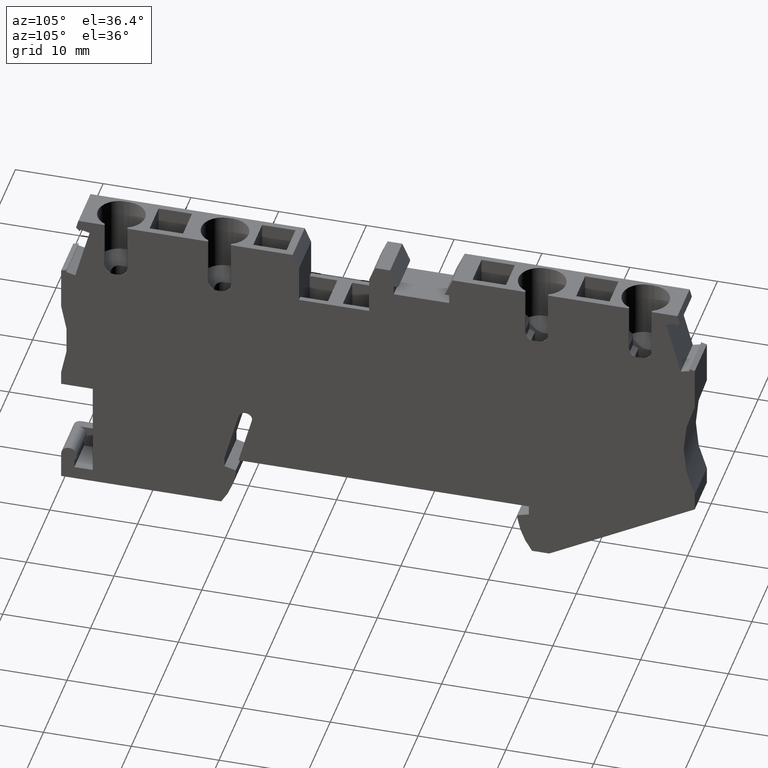
[diagram: clean part render]
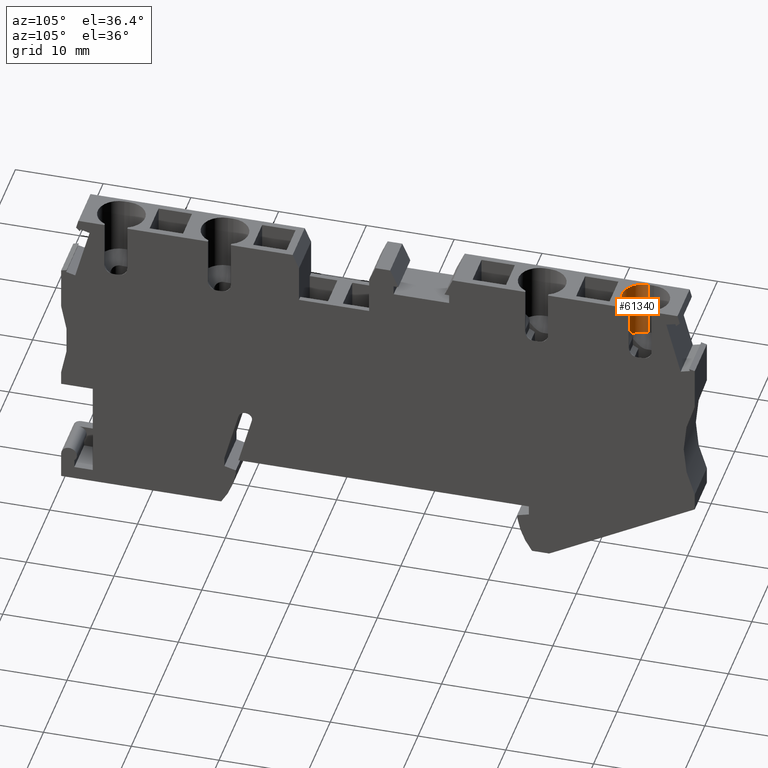
[diagram: same view with one face highlighted and labeled with its STEP entity id]
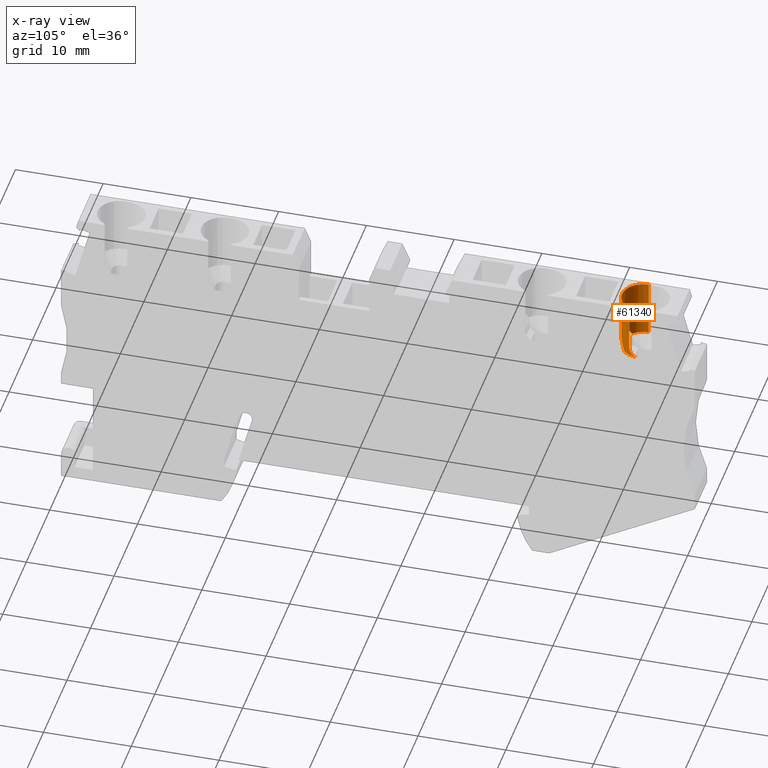
[diagram: x-ray of the same camera — body ghosted, the highlighted face saturated]
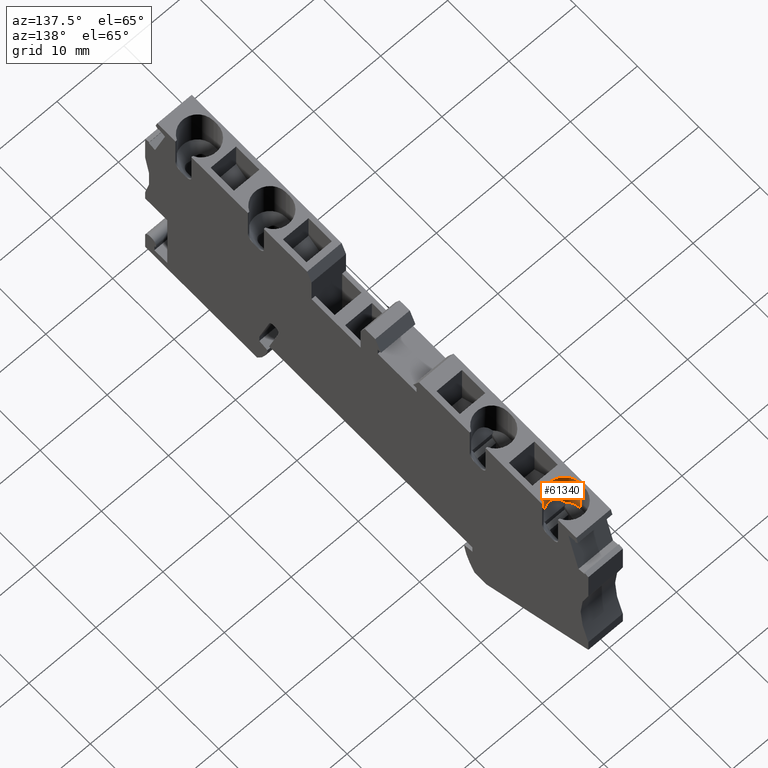
[diagram: same view with one face highlighted and labeled with its STEP entity id]
A machine part, auxiliary view. The second image highlights one B-rep face of the part: STEP entity #61340.
The next image is the same camera in x-ray: the body ghosted, the highlighted face saturated — about 0% of this face is hidden behind the body in this view.
A second angle (auxiliary view) of the same face is appended — the face is thin or edge-on in the first view.
In plain terms, the highlighted cylindrical surface (edge-blend (fillet) strip) has radius 2.4 mm, axis along (0, -0, -1).
Its self-contained STEP definition (entity closure, byte-faithful):
#53810=CARTESIAN_POINT('',(61.7393712813338,36.8812037762983,
-4.79999999998788));
#53820=VERTEX_POINT('',#53810);
#53850=CARTESIAN_POINT('',(61.7393712813317,36.8812037763106,
-2.39999999998788));
#53860=DIRECTION('',(0.121869343405264,-0.992546151641308,
1.4243280312826E-16));
#53870=DIRECTION('',(0.992546151641308,0.121869343405264,
2.30978523078026E-13));
#53880=AXIS2_PLACEMENT_3D('',#53850,#53860,#53870);
#53890=CIRCLE('',#53880,2.4);
#53900=CARTESIAN_POINT('',(60.7468251296915,36.7593344328929,
-0.218257577060944));
#53910=VERTEX_POINT('',#53900);
#53920=EDGE_CURVE('',#53910,#53820,#53890,.T.);
#59930=CARTESIAN_POINT('',(61.4768276673579,39.0194499209634,
-2.39999999998788));
#59940=DIRECTION('',(0.121869343405264,-0.992546151641308,
1.4243280312826E-16));
#59950=DIRECTION('',(0.992546151641308,0.121869343405264,
2.30978523078026E-13));
#59960=AXIS2_PLACEMENT_3D('',#59930,#59940,#59950);
#59970=CYLINDRICAL_SURFACE('',#59960,2.4);
#59980=CARTESIAN_POINT('',(62.5315220134518,30.4296537906419,
-2.39999999996629));
#59990=DIRECTION('',(0.121869343405014,-0.992546151641339,
-1.31792281186762E-15));
#60000=DIRECTION('',(0.992546151641339,0.121869343405016,
1.07403295171097E-12));
#60010=AXIS2_PLACEMENT_3D('',#59980,#59990,#60000);
#60020=CIRCLE('',#60010,2.4);
#60030=CARTESIAN_POINT('',(60.8562179453102,30.2239523162558,
-4.10617794575723));
#60040=VERTEX_POINT('',#60030);
#60050=CARTESIAN_POINT('',(62.5315220134546,30.4296537906408,
-4.79999999996629));
#60060=VERTEX_POINT('',#60050);
#60070=EDGE_CURVE('',#60040,#60060,#60020,.T.);
#60080=ORIENTED_EDGE('',*,*,#60070,.T.);
#60090=CARTESIAN_POINT('',(62.9726502488311,26.8369526225484,
-2.39999999996629));
#60100=DIRECTION('',(0.848048096156561,0.52991926423299,
9.73961405917522E-13));
#60110=DIRECTION('',(0.52991926423299,-0.848048096156561,
4.52711495397097E-13));
#60120=AXIS2_PLACEMENT_3D('',#60090,#60100,#60110);
#60130=ELLIPSE('',#60120,5.67888379956745,2.4);
#60140=CARTESIAN_POINT('',(60.8562179453062,30.2239523162558,
-0.693822054179192));
#60150=VERTEX_POINT('',#60140);
#60160=EDGE_CURVE('',#60040,#60150,#60130,.T.);
#60170=ORIENTED_EDGE('',*,*,#60160,.F.);
#60180=CARTESIAN_POINT('',(62.5315220134508,30.4296537906421,
-2.39999999996629));
#60190=DIRECTION('',(-0.121869343404897,0.992546151641354,
1.31792281199353E-15));
#60200=DIRECTION('',(0.992546151641353,0.121869343404897,
1.07403295171097E-12));
#60210=AXIS2_PLACEMENT_3D('',#60180,#60190,#60200);
#60220=CIRCLE('',#60210,2.40000000000103);
#60230=CARTESIAN_POINT('',(62.5315220134494,30.4296537906402,
9.35486206455087E-12));
#60240=VERTEX_POINT('',#60230);
#60250=EDGE_CURVE('',#60150,#60240,#60220,.T.);
#60260=ORIENTED_EDGE('',*,*,#60250,.F.);
#60270=CARTESIAN_POINT('',(61.4768276673447,39.0194499209744,
-2.39999999996628));
#60280=DIRECTION('',(0.121869343405014,-0.992546151641339,
-1.31792281186752E-15));
#60290=DIRECTION('',(0.992546151641339,0.121869343405014,
1.07403295171097E-12));
#60300=AXIS2_PLACEMENT_3D('',#60270,#60280,#60290);
#60310=CYLINDRICAL_SURFACE('',#60300,2.4);
#60320=CARTESIAN_POINT('',(62.4096526700445,31.4221999422815,
3.37272174749707E-11));
#60330=DIRECTION('',(-1.06586665856897E-12,-1.32199789835444E-13,1.));
#60340=DIRECTION('',(-0.970295726276058,-0.241921895599423,
-1.06618788734445E-12));
#60350=AXIS2_PLACEMENT_3D('',#60320,#60330,#60340);
#60360=CYLINDRICAL_SURFACE('',#60350,1.);
#60370=CARTESIAN_POINT('',(61.4171065184034,31.3003305988765,
-0.218257577040194));
#60380=CARTESIAN_POINT('',(61.4191138628198,31.2839820905489,
-0.218257577040194));
#60390=CARTESIAN_POINT('',(61.4215300821469,31.2676450188394,
-0.218070787890067));
#60400=CARTESIAN_POINT('',(61.4243554124806,31.2513511370861,
-0.217696164192465));
#60410=CARTESIAN_POINT('',(61.4271807257911,31.2350573535073,
-0.217321542752062));
#60420=CARTESIAN_POINT('',(61.4304151213555,31.2188071499037,
-0.216759078484364));
#60430=CARTESIAN_POINT('',(61.4340549105824,31.2026344355821,
-0.216011075475156));
#60440=CARTESIAN_POINT('',(61.4376946868663,31.1864617787705,
-0.21526307512584));
#60450=CARTESIAN_POINT('',(61.4417397884724,31.1703670102893,
-0.214329551528721));
#60460=CARTESIAN_POINT('',(61.4461823906103,31.1543846689185,
-0.21321628553977));
#60470=CARTESIAN_POINT('',(61.4506249867478,31.1384023491341,
-0.212103021054453));
#60480=CARTESIAN_POINT('',(61.4554649814518,31.1225328436212,
-0.210810051557495));
#60490=CARTESIAN_POINT('',(61.4606905191986,31.1068099673908,
-0.209346513391407));
#60500=CARTESIAN_POINT('',(61.465916060404,31.0910870807539,
-0.207882974256647));
#60510=CARTESIAN_POINT('',(61.4715270167153,31.0755111822675,
-0.206248921838012));
#60520=CARTESIAN_POINT('',(61.4775078770065,31.0601141999334,
-0.204456509614821));
#60530=CARTESIAN_POINT('',(61.4834887526428,31.0447171780955,
-0.202664092792874));
#60540=CARTESIAN_POINT('',(61.4898393865656,31.0294993913364,
-0.200713384457306));
#60550=CARTESIAN_POINT('',(61.4965412166617,31.0144899059803,
-0.198619041810319));
#60560=CARTESIAN_POINT('',(61.5032430765794,30.9994803538355,
-0.196524689843998));
#60570=CARTESIAN_POINT('',(61.5102959770728,30.9846793747915,
-0.19428677918334));
#60580=CARTESIAN_POINT('',(61.5176791106277,30.9701123741037,
-0.191921828776504));
#60590=CARTESIAN_POINT('',(61.5250614089469,30.9555470213448,
-0.189557145910672));
#60600=CARTESIAN_POINT('',(61.532767607524,30.9412231287615,
-0.187067547586629));
#60610=CARTESIAN_POINT('',(61.5408448912336,30.9270504259964,
-0.184448110930471));
#60620=CARTESIAN_POINT('',(61.5569906016247,30.8987205613377,
-0.179212109923377));
#60630=CARTESIAN_POINT('',(61.5745455435996,30.8711448861255,
-0.173480176979738));
#60640=CARTESIAN_POINT('',(61.5934036052245,30.8444997915283,
-0.167378541304938));
#60650=CARTESIAN_POINT('',(61.6122614632871,30.81785498455,
-0.161276971493902));
#60660=CARTESIAN_POINT('',(61.6324193247291,30.7921454729551,
-0.15480733486807));
#60670=CARTESIAN_POINT('',(61.6537368892241,30.7675310700206,
-0.148113792781539));
#60680=CARTESIAN_POINT('',(61.6750545380049,30.7429165697654,
-0.141420224229989));
#60690=CARTESIAN_POINT('',(61.6975284216408,30.7194009981205,
-0.134504457839017));
#60700=CARTESIAN_POINT('',(61.7209936564891,30.6971145934784,
-0.127516013807516));
#60710=CARTESIAN_POINT('',(61.732726160506,30.6859714988674,
-0.124021825566851));
#60720=CARTESIAN_POINT('',(61.7447058497514,30.6751355105738,
-0.120509571647375));
#60730=CARTESIAN_POINT('',(61.756910628337,30.6646196976952,
-0.116997504467515));
#60740=CARTESIAN_POINT('',(61.7691067623601,30.6541113330962,
-0.11348792486121));
#60750=CARTESIAN_POINT('',(61.7815554839333,30.6438973937531,
-0.109970314012249));
#60760=CARTESIAN_POINT('',(61.7942882826867,30.6339571682761,
-0.106448833215427));
#60770=CARTESIAN_POINT('',(61.8197461495276,30.6140827524887,
-0.099408009674209));
#60780=CARTESIAN_POINT('',(61.8462745503176,30.5953612032767,
-0.0923711029713738));
#60790=CARTESIAN_POINT('',(61.8737255540593,30.5779356907786,
-0.0854804788250963));
#60800=CARTESIAN_POINT('',(61.9011763463611,30.5605103124997,
-0.0785899077534922));
#60810=CARTESIAN_POINT('',(61.9295456221103,30.5443838627052,
-0.0718471964218977));
#60820=CARTESIAN_POINT('',(61.9586568479874,30.5296738818678,
-0.0653881134239507));
#60830=CARTESIAN_POINT('',(61.9877682535219,30.514963810249,
-0.0589289905643404));
#60840=CARTESIAN_POINT('',(62.0176166421492,30.5016726511179,
-0.0527549957431393));
#60850=CARTESIAN_POINT('',(62.0480098953348,30.4898832023779,
-0.0469850168732152));
#60860=CARTESIAN_POINT('',(62.0632063498929,30.4839885447396,
-0.0441000600980186));
#60870=CARTESIAN_POINT('',(62.0785383585655,30.4784689415366,
-0.0413158837617684));
#60880=CARTESIAN_POINT('',(62.0939815871522,30.4733312646314,
-0.0386451672366936));
#60890=CARTESIAN_POINT('',(62.1094213008653,30.4681947570596,
-0.035975058565793));
#60900=CARTESIAN_POINT('',(62.1249747164078,30.4634377277027,
-0.0334174451074342));
#60910=CARTESIAN_POINT('',(62.1406986545135,30.4590469235302,
-0.0309723698493465));
#60920=CARTESIAN_POINT('',(62.1564160013769,30.4546579599179,
-0.0285283195306425));
#60930=CARTESIAN_POINT('',(62.1722749603752,30.4506444612853,
-0.0262016938852348));
#60940=CARTESIAN_POINT('',(62.1882462114711,30.4470183283746,
-0.0240055871171802));
#60950=CARTESIAN_POINT('',(62.2042174487717,30.4433921985959,
-0.0218094822460473));
#60960=CARTESIAN_POINT('',(62.2203007080475,30.4401535040414,
-0.019743947786248));
#60970=CARTESIAN_POINT('',(62.2364652634084,30.4373110540394,
-0.01782027780104));
#60980=CARTESIAN_POINT('',(62.2526298304998,30.4344686019746,
-0.0158966064198527));
#60990=CARTESIAN_POINT('',(62.2688754045087,30.4320224434358,
-0.0141148425629458));
#61000=CARTESIAN_POINT('',(62.2851707484488,30.4299780662901,
-0.0124841907407076));
#61010=CARTESIAN_POINT('',(62.3014676243624,30.4279334969465,
-0.0108533856160607));
#61020=CARTESIAN_POINT('',(62.3178074763592,30.4262913154511,
-0.00937428348215416));
#61030=CARTESIAN_POINT('',(62.3341780972938,30.425052215579,
-0.00805230246709988));
#61040=CARTESIAN_POINT('',(62.3505559788458,30.4238125661473,
-0.00672973513351937));
#61050=CARTESIAN_POINT('',(62.3669959028542,30.4229743524438,
-0.00556204328607136));
#61060=CARTESIAN_POINT('',(62.3834638428309,30.4225429284367,
-0.00455663732988825));
#61070=CARTESIAN_POINT('',(62.3999317632098,30.422111504943,
-0.00355123257018967));
#61080=CARTESIAN_POINT('',(62.4164273428233,30.4220868899852,
-0.00270814556202637));
#61090=CARTESIAN_POINT('',(62.4329157132519,30.4224705634891,
-0.00203230095674629));
#61100=CARTESIAN_POINT('',(62.4659093918283,30.4232383046264,
-0.000679917483147079));
#61110=CARTESIAN_POINT('',(62.498798782279,30.4256358830696,
3.36865816806328E-11));
#61120=CARTESIAN_POINT('',(62.5315220134501,30.4296537906403,
3.37127288913953E-11));
#61130=B_SPLINE_CURVE_WITH_KNOTS('',3,(#60370,#60380,#60390,#60400,
#60410,#60420,#60430,#60440,#60450,#60460,#60470,#60480,#60490,#60500,
#60510,#60520,#60530,#60540,#60550,#60560,#60570,#60580,#60590,#60600,
#60610,#60620,#60630,#60640,#60650,#60660,#60670,#60680,#60690,#60700,
#60710,#60720,#60730,#60740,#60750,#60760,#60770,#60780,#60790,#60800,
#60810,#60820,#60830,#60840,#60850,#60860,#60870,#60880,#60890,#60900,
#60910,#60920,#60930,#60940,#60950,#60960,#60970,#60980,#60990,#61000,
#61010,#61020,#61030,#61040,#61050,#61060,#61070,#61080,#61090,#61100,
#61110,#61120),.UNSPECIFIED.,.F.,.F.,(4,3,3,3,3,3,3,3,3,3,3,3,3,3,3,3,3,
3,3,3,3,3,3,3,3,4),(0.,0.0495222692515613,0.0992298942329426,
0.149064989412251,0.198959033159937,0.248837074435103,0.298621508203784,
0.348235771127576,0.39770663307458,0.497087658472461,0.596803861500542,
0.696371962687581,0.745940559031701,0.795428028473213,0.894905849219937,
0.994675469480008,1.0942441344087,1.143816540881,1.19327271568618,
1.24281586857666,1.29239520600228,1.34194342067888,1.39140236455022,
1.44088137071489,1.49040354021153,1.58933923289458),.UNSPECIFIED.);
#61140=SURFACE_CURVE('',#61130,(#60310,#60360),.CURVE_3D.);
#61150=CARTESIAN_POINT('',(61.4171065184034,31.3003305988765,
-0.218257577040192));
#61160=VERTEX_POINT('',#61150);
#61170=EDGE_CURVE('',#61160,#60240,#61140,.T.);
#61180=ORIENTED_EDGE('',*,*,#61170,.T.);
#61190=CARTESIAN_POINT('',(60.484281515701,38.8975805775691,
-0.218257577040182));
#61200=DIRECTION('',(0.121869343405014,-0.992546151641339,
-1.31792281186762E-15));
#61210=VECTOR('',#61200,1.);
#61220=LINE('',#61190,#61210);
#61230=EDGE_CURVE('',#53910,#61160,#61220,.T.);
#61240=ORIENTED_EDGE('',*,*,#61230,.T.);
#61250=ORIENTED_EDGE('',*,*,#53920,.F.);
#61260=CARTESIAN_POINT('',(61.4768276673472,39.0194499209747,
-4.79999999996628));
#61270=DIRECTION('',(0.121869343405014,-0.992546151641339,
-1.31792281186752E-15));
#61280=VECTOR('',#61270,1.);
#61290=LINE('',#61260,#61280);
#61300=EDGE_CURVE('',#53820,#60060,#61290,.T.);
#61310=ORIENTED_EDGE('',*,*,#61300,.F.);
#61320=EDGE_LOOP('',(#61310,#61250,#61240,#61180,#60260,#60170,#60080));
#61330=FACE_OUTER_BOUND('',#61320,.T.);
#61340=ADVANCED_FACE('',(#61330),#59970,.F.);